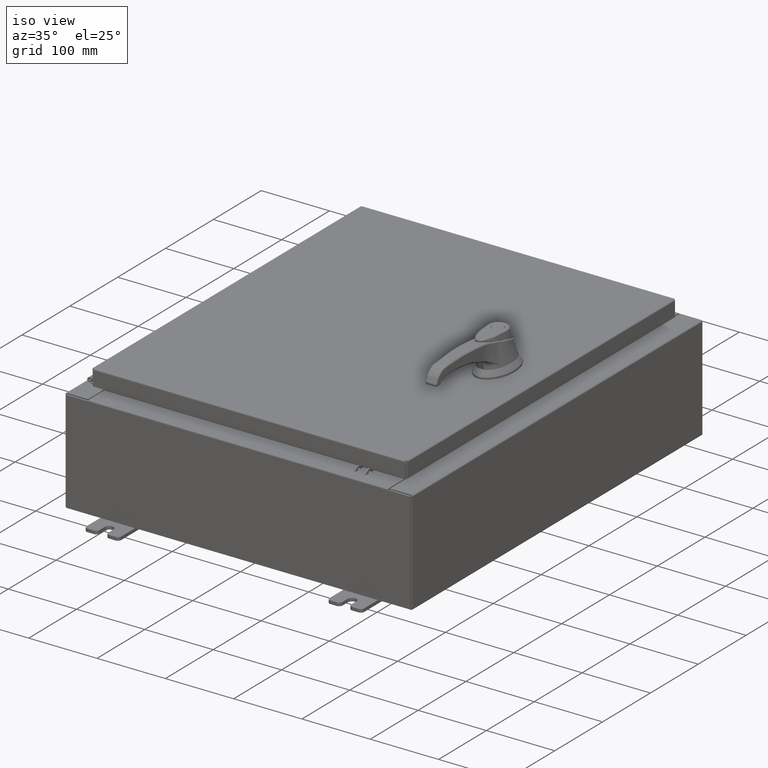
[diagram: clean part render]
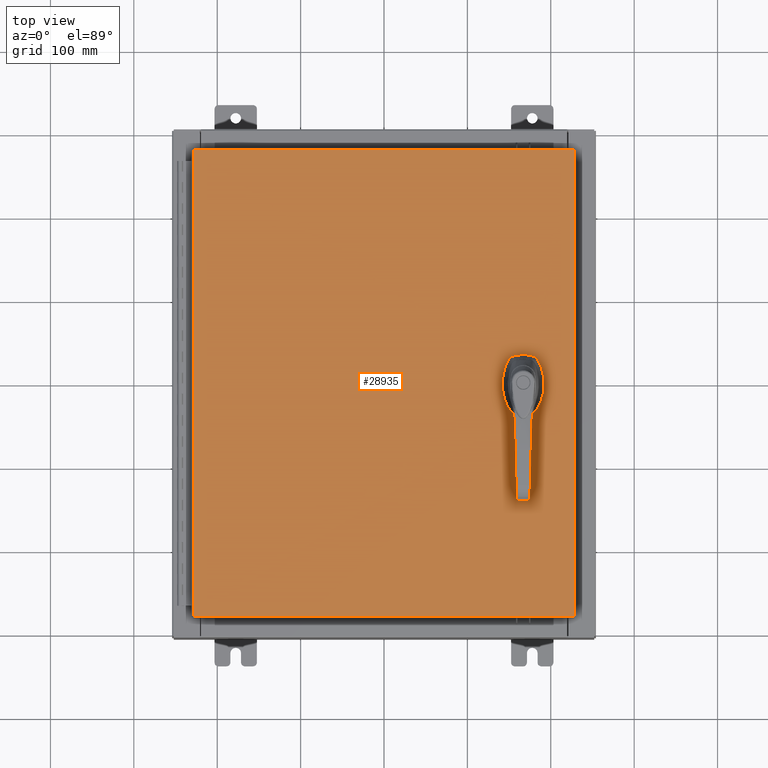
[diagram: tour spotlight — one face highlighted and labeled with its STEP entity id]
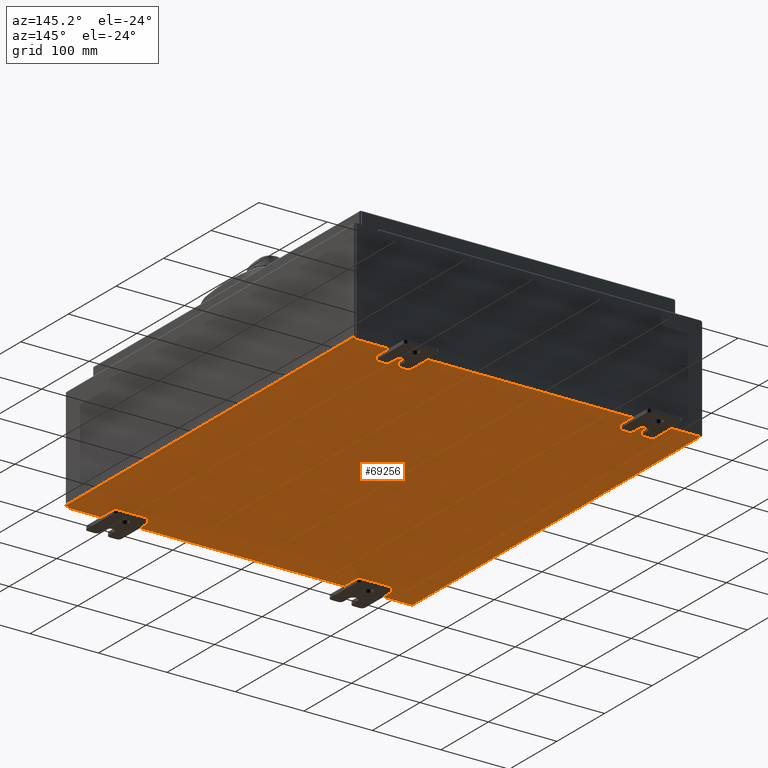
[diagram: tour spotlight — one face highlighted and labeled with its STEP entity id]
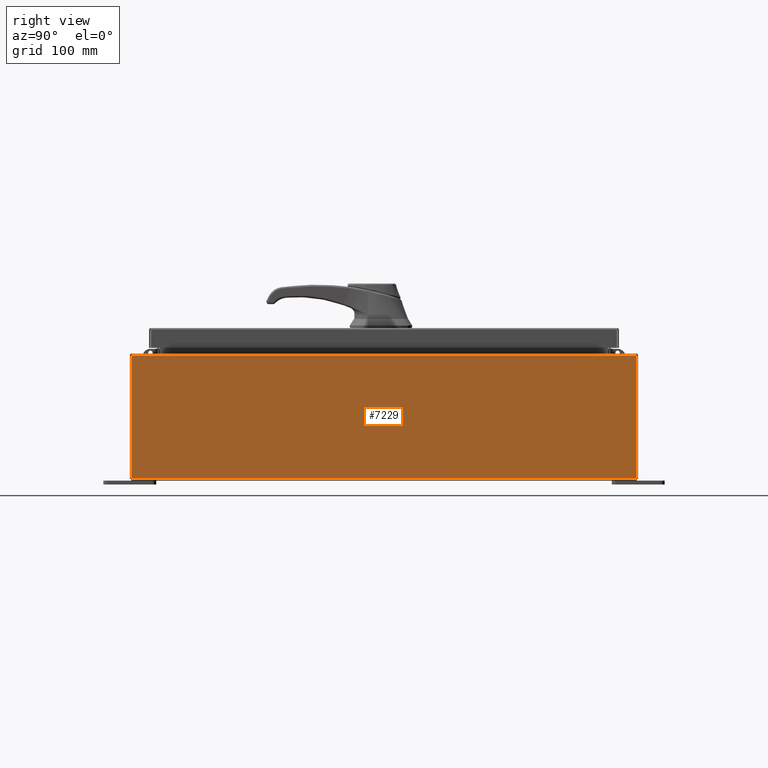
[diagram: tour spotlight — one face highlighted and labeled with its STEP entity id]
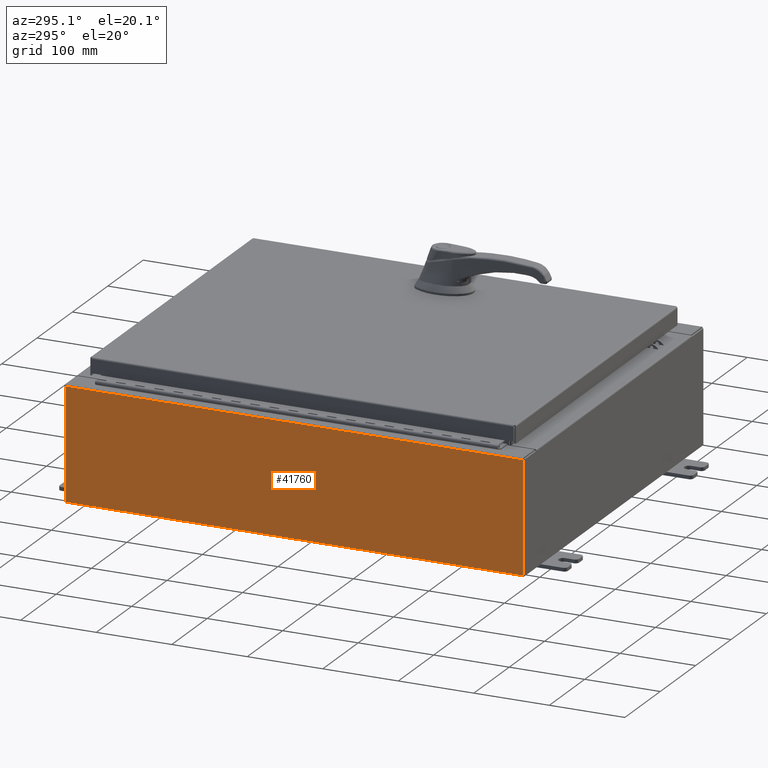
[diagram: tour spotlight — one face highlighted and labeled with its STEP entity id]
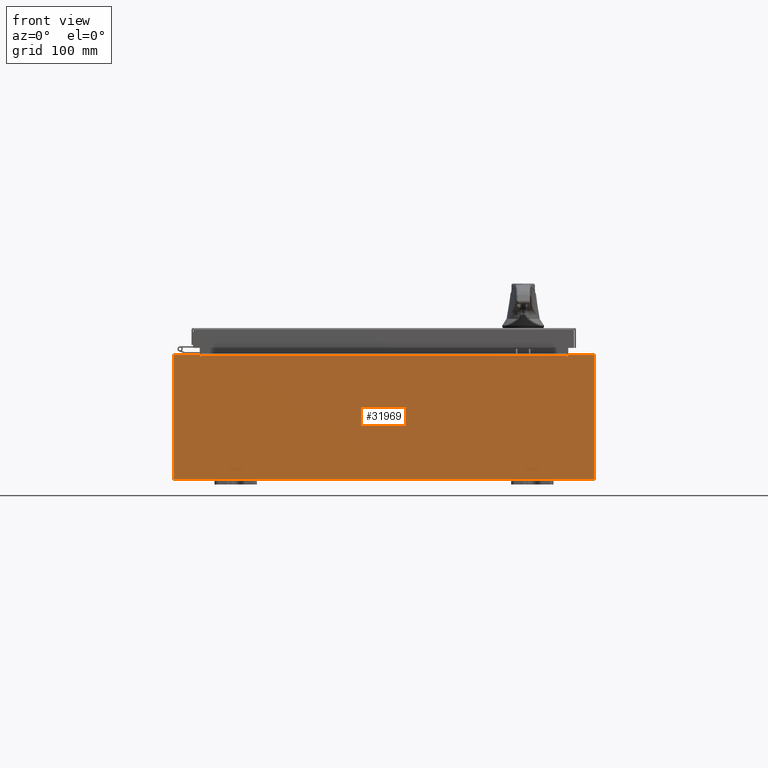
[diagram: tour spotlight — one face highlighted and labeled with its STEP entity id]
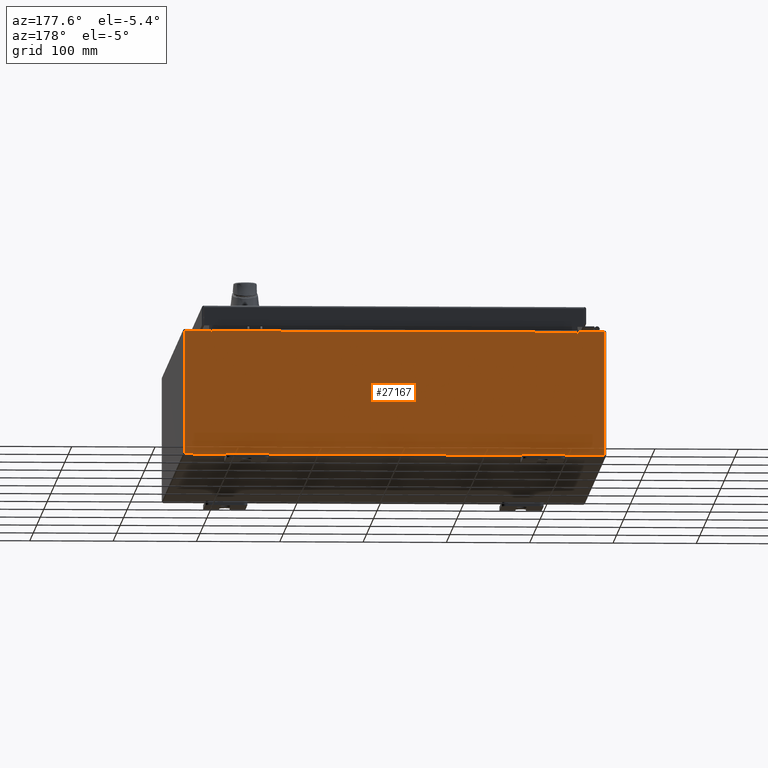
[diagram: tour spotlight — one face highlighted and labeled with its STEP entity id]
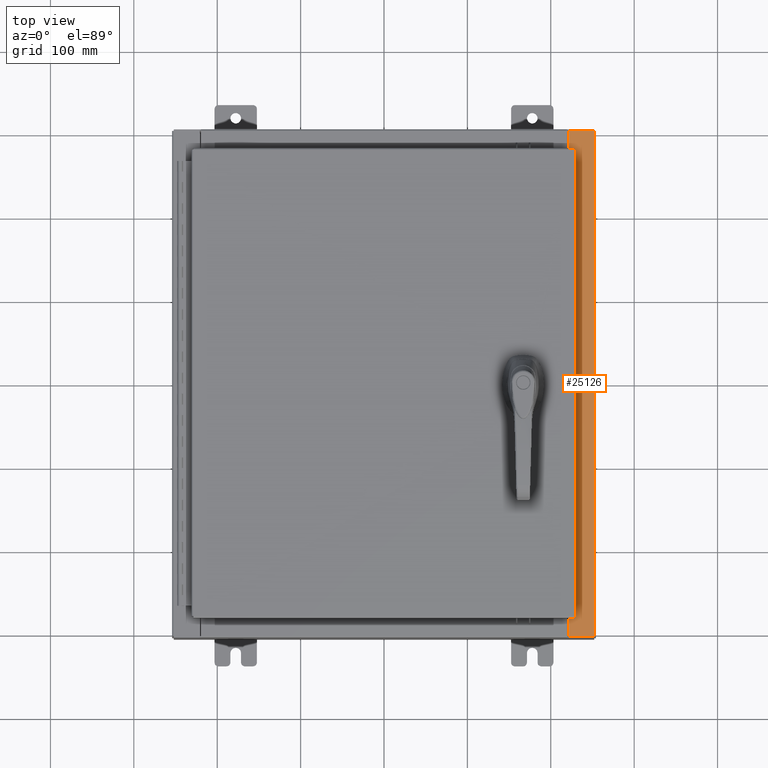
[diagram: tour spotlight — one face highlighted and labeled with its STEP entity id]
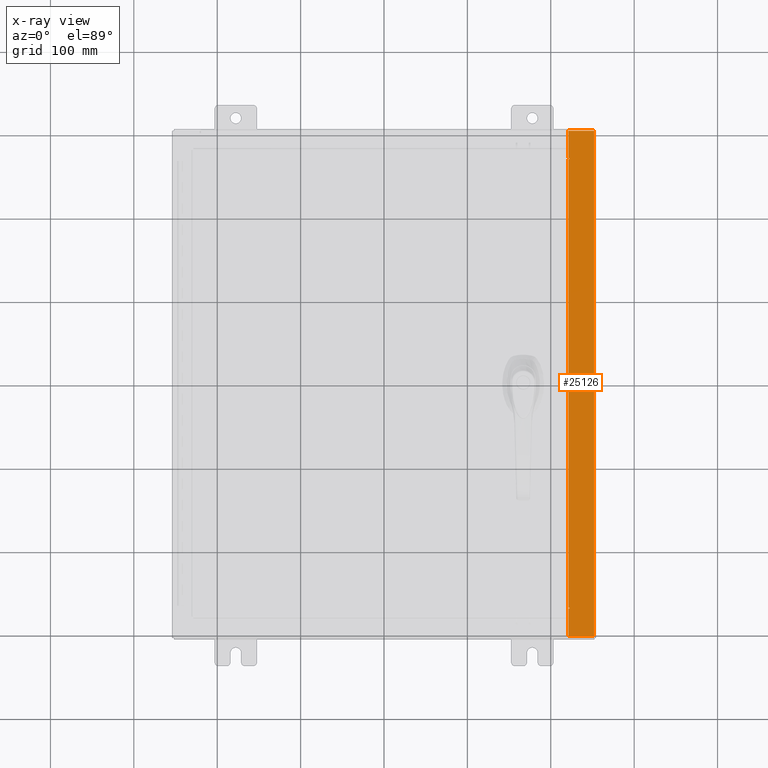
[diagram: x-ray of the same camera — body ghosted, this tour face saturated]
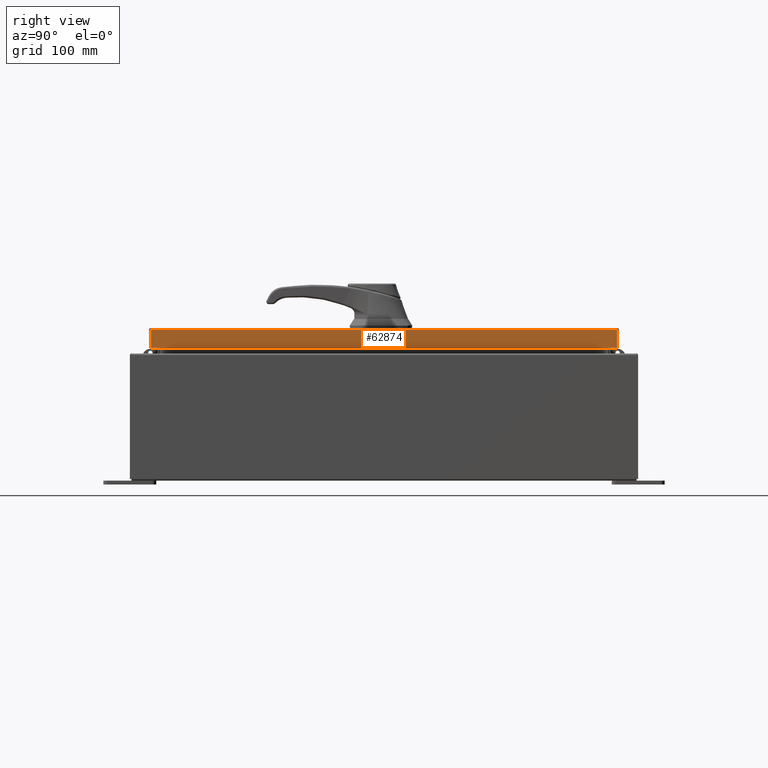
[diagram: tour spotlight — one face highlighted and labeled with its STEP entity id]
A machine part: a face-by-face anatomy tour. The part has 2412 B-rep faces; the first image is the clean iso view, then the 8 largest visible faces are spotlighted one at a time (largest first), each with its STEP entity span.

Face 1 — top view, entity #28935. In plain terms, the highlighted planar face has unit normal (0, 0, -1).
Definition (entity closure, byte-faithful):
#1443 = ORIENTED_EDGE ( 'NONE', *, *, #84385, .T. ) ;
#1839 = VERTEX_POINT ( 'NONE', #104342 ) ;
#1873 = VECTOR ( 'NONE', #65570, 39.37007874015748100 ) ;
#3397 = DIRECTION ( 'NONE',  ( 1.000000000000000000, 0.0000000000000000000, 0.0000000000000000000 ) ) ;
#5227 = ORIENTED_EDGE ( 'NONE', *, *, #60824, .F. ) ;
#5335 = LINE ( 'NONE', #27640, #25663 ) ;
#7788 = LINE ( 'NONE', #101567, #25416 ) ;
#8062 = CARTESIAN_POINT ( 'NONE',  ( 6.749499999999998500, -1.338000000000000100, 0.0000000000000000000 ) ) ;
#8393 = CARTESIAN_POINT ( 'NONE',  ( 6.778227370756308500, -0.4029999999999252000, 0.0000000000000000000 ) ) ;
#9724 = DIRECTION ( 'NONE',  ( -0.0000000000000000000, 0.0000000000000000000, 1.000000000000000000 ) ) ;
#10529 = FACE_BOUND ( 'NONE', #80455, .T. ) ;
#11609 = VERTEX_POINT ( 'NONE', #73767 ) ;
#11759 = CARTESIAN_POINT ( 'NONE',  ( 6.406499999999998500, -1.338000000000000100, 0.0000000000000000000 ) ) ;
#13243 = FACE_BOUND ( 'NONE', #68917, .T. ) ;
#15787 = VERTEX_POINT ( 'NONE', #11759 ) ;
#16213 = VERTEX_POINT ( 'NONE', #112035 ) ;
#17753 = ORIENTED_EDGE ( 'NONE', *, *, #23473, .T. ) ;
#20096 = DIRECTION ( 'NONE',  ( -0.0000000000000000000, 0.0000000000000000000, 1.000000000000000000 ) ) ;
#20970 = VECTOR ( 'NONE', #110856, 39.37007874015748100 ) ;
#21367 = AXIS2_PLACEMENT_3D ( 'NONE', #107209, #55258, #3397 ) ;
#21513 = VERTEX_POINT ( 'NONE', #78891 ) ;
#22700 = AXIS2_PLACEMENT_3D ( 'NONE', #78635, #26778, #87376 ) ;
#22728 = CARTESIAN_POINT ( 'NONE',  ( 6.980999999999924400, 0.0000000000000000000, 0.0000000000000000000 ) ) ;
#23142 = CIRCLE ( 'NONE', #55793, 0.1715000000000000700 ) ;
#23473 = EDGE_CURVE ( 'NONE', #11609, #83363, #63881, .T. ) ;
#23921 = EDGE_CURVE ( 'NONE', #21513, #100274, #42101, .T. ) ;
#25416 = VECTOR ( 'NONE', #83688, 39.37007874015748100 ) ;
#25663 = VECTOR ( 'NONE', #36395, 39.37007874015748100 ) ;
#26535 = CARTESIAN_POINT ( 'NONE',  ( -8.990300000000001300, -11.00630000000000100, 8.878505979408856000E-016 ) ) ;
#26778 = DIRECTION ( 'NONE',  ( -0.0000000000000000000, 0.0000000000000000000, 1.000000000000000000 ) ) ;
#27640 = CARTESIAN_POINT ( 'NONE',  ( 6.175000000000072700, 0.0000000000000000000, 0.0000000000000000000 ) ) ;
#28935 = ADVANCED_FACE ( 'NONE', ( #10529, #79624, #13243 ), #100367, .F. ) ;
#30779 = VERTEX_POINT ( 'NONE', #109730 ) ;
#32503 = AXIS2_PLACEMENT_3D ( 'NONE', #93247, #41358, #102006 ) ;
#32645 = EDGE_CURVE ( 'NONE', #98771, #11609, #110397, .T. ) ;
#32838 = VERTEX_POINT ( 'NONE', #60498 ) ;
#33430 = CARTESIAN_POINT ( 'NONE',  ( 8.990299999999999500, 11.00630000000000000, -2.048885995248197400E-016 ) ) ;
#36046 = CIRCLE ( 'NONE', #39004, 0.4499999999999156900 ) ;
#36395 = DIRECTION ( 'NONE',  ( 0.0000000000000000000, -1.000000000000000000, 0.0000000000000000000 ) ) ;
#37858 = EDGE_CURVE ( 'NONE', #44173, #15787, #23142, .T. ) ;
#38161 = VECTOR ( 'NONE', #94056, 39.37007874015748100 ) ;
#39004 = AXIS2_PLACEMENT_3D ( 'NONE', #71975, #20096, #80665 ) ;
#39993 = VECTOR ( 'NONE', #69706, 39.37007874015748100 ) ;
#40191 = DIRECTION ( 'NONE',  ( 0.0000000000000000000, -1.000000000000000000, 0.0000000000000000000 ) ) ;
#41358 = DIRECTION ( 'NONE',  ( -0.0000000000000000000, 0.0000000000000000000, 1.000000000000000000 ) ) ;
#41656 = DIRECTION ( 'NONE',  ( -0.0000000000000000000, 0.0000000000000000000, 1.000000000000000000 ) ) ;
#42101 = LINE ( 'NONE', #92831, #108535 ) ;
#44173 = VERTEX_POINT ( 'NONE', #8062 ) ;
#48420 = DIRECTION ( 'NONE',  ( 0.0000000000000000000, 0.0000000000000000000, -1.000000000000000000 ) ) ;
#48778 = CARTESIAN_POINT ( 'NONE',  ( -8.990299999999999500, 11.00630000000000100, -2.048885995248197400E-016 ) ) ;
#50258 = CARTESIAN_POINT ( 'NONE',  ( 8.990299999999997700, -11.00630000000000000, -2.219626494852214000E-016 ) ) ;
#51527 = ORIENTED_EDGE ( 'NONE', *, *, #32645, .T. ) ;
#51858 = ORIENTED_EDGE ( 'NONE', *, *, #84839, .F. ) ;
#54865 = CIRCLE ( 'NONE', #21367, 0.4499999999999156900 ) ;
#55258 = DIRECTION ( 'NONE',  ( -0.0000000000000000000, 0.0000000000000000000, 1.000000000000000000 ) ) ;
#55793 = AXIS2_PLACEMENT_3D ( 'NONE', #61636, #9724, #70305 ) ;
#57339 = EDGE_CURVE ( 'NONE', #15787, #44173, #84696, .T. ) ;
#57630 = EDGE_CURVE ( 'NONE', #30779, #98771, #65709, .T. ) ;
#57811 = EDGE_CURVE ( 'NONE', #100274, #68904, #54865, .T. ) ;
#60498 = CARTESIAN_POINT ( 'NONE',  ( 6.175000000000072700, 0.2002273707563079800, 0.0000000000000000000 ) ) ;
#60504 = CARTESIAN_POINT ( 'NONE',  ( 6.980999999999924400, 0.2002273707563080300, 0.0000000000000000000 ) ) ;
#60824 = EDGE_CURVE ( 'NONE', #66670, #16213, #70970, .T. ) ;
#61636 = CARTESIAN_POINT ( 'NONE',  ( 6.577999999999998500, -1.338000000000000100, 0.0000000000000000000 ) ) ;
#63881 = LINE ( 'NONE', #33430, #38161 ) ;
#65570 = DIRECTION ( 'NONE',  ( -1.000000000000000000, 0.0000000000000000000, 0.0000000000000000000 ) ) ;
#65709 = LINE ( 'NONE', #26535, #39993 ) ;
#66670 = VERTEX_POINT ( 'NONE', #75073 ) ;
#67082 = ORIENTED_EDGE ( 'NONE', *, *, #76386, .F. ) ;
#67131 = ORIENTED_EDGE ( 'NONE', *, *, #92495, .F. ) ;
#67689 = VECTOR ( 'NONE', #40191, 39.37007874015748100 ) ;
#67776 = CARTESIAN_POINT ( 'NONE',  ( 6.980999999999924400, -0.2002273707563079800, 0.0000000000000000000 ) ) ;
#68196 = CARTESIAN_POINT ( 'NONE',  ( 8.990299999999997700, -11.00630000000000000, -2.219626494852214000E-016 ) ) ;
#68904 = VERTEX_POINT ( 'NONE', #67776 ) ;
#68917 = EDGE_LOOP ( 'NONE', ( #1443, #94692, #77320, #67131, #51858, #95144, #5227, #67082 ) ) ;
#69706 = DIRECTION ( 'NONE',  ( 1.000000000000000000, -0.0000000000000000000, -0.0000000000000000000 ) ) ;
#69943 = EDGE_CURVE ( 'NONE', #16213, #32838, #74011, .T. ) ;
#70305 = DIRECTION ( 'NONE',  ( 1.000000000000000000, 0.0000000000000000000, 0.0000000000000000000 ) ) ;
#70449 = LINE ( 'NONE', #22728, #67689 ) ;
#70970 = LINE ( 'NONE', #92105, #1873 ) ;
#71975 = CARTESIAN_POINT ( 'NONE',  ( 6.577999999999998500, 0.0000000000000000000, 0.0000000000000000000 ) ) ;
#73767 = CARTESIAN_POINT ( 'NONE',  ( 8.990299999999999500, 11.00630000000000000, -2.048885995248197400E-016 ) ) ;
#74011 = CIRCLE ( 'NONE', #22700, 0.4499999999999156900 ) ;
#75073 = CARTESIAN_POINT ( 'NONE',  ( 6.778227370756308500, 0.4029999999999252000, 0.0000000000000000000 ) ) ;
#76386 = EDGE_CURVE ( 'NONE', #111287, #66670, #36046, .T. ) ;
#77320 = ORIENTED_EDGE ( 'NONE', *, *, #23921, .F. ) ;
#78635 = CARTESIAN_POINT ( 'NONE',  ( 6.577999999999998500, 0.0000000000000000000, 0.0000000000000000000 ) ) ;
#78891 = CARTESIAN_POINT ( 'NONE',  ( 6.377772629243688500, -0.4029999999999252000, 0.0000000000000000000 ) ) ;
#79624 = FACE_OUTER_BOUND ( 'NONE', #83459, .T. ) ;
#79748 = CIRCLE ( 'NONE', #32503, 0.4499999999999156900 ) ;
#80455 = EDGE_LOOP ( 'NONE', ( #101018, #93510 ) ) ;
#80665 = DIRECTION ( 'NONE',  ( 1.000000000000000000, 0.0000000000000000000, 0.0000000000000000000 ) ) ;
#83363 = VERTEX_POINT ( 'NONE', #48778 ) ;
#83459 = EDGE_LOOP ( 'NONE', ( #83820, #51527, #17753, #98874 ) ) ;
#83688 = DIRECTION ( 'NONE',  ( 0.0000000000000000000, -1.000000000000000000, 0.0000000000000000000 ) ) ;
#83820 = ORIENTED_EDGE ( 'NONE', *, *, #57630, .T. ) ;
#84385 = EDGE_CURVE ( 'NONE', #111287, #68904, #70449, .T. ) ;
#84696 = CIRCLE ( 'NONE', #101226, 0.1715000000000000700 ) ;
#84839 = EDGE_CURVE ( 'NONE', #32838, #1839, #5335, .T. ) ;
#87346 = AXIS2_PLACEMENT_3D ( 'NONE', #99632, #48420, #109049 ) ;
#87376 = DIRECTION ( 'NONE',  ( 1.000000000000000000, 0.0000000000000000000, 0.0000000000000000000 ) ) ;
#92105 = CARTESIAN_POINT ( 'NONE',  ( 0.0000000000000000000, 0.4029999999999252000, 0.0000000000000000000 ) ) ;
#92495 = EDGE_CURVE ( 'NONE', #1839, #21513, #79748, .T. ) ;
#92831 = CARTESIAN_POINT ( 'NONE',  ( 0.0000000000000000000, -0.4029999999999252000, 0.0000000000000000000 ) ) ;
#93247 = CARTESIAN_POINT ( 'NONE',  ( 6.577999999999998500, 0.0000000000000000000, 0.0000000000000000000 ) ) ;
#93510 = ORIENTED_EDGE ( 'NONE', *, *, #57339, .F. ) ;
#93567 = EDGE_CURVE ( 'NONE', #83363, #30779, #7788, .T. ) ;
#93584 = CARTESIAN_POINT ( 'NONE',  ( 6.577999999999998500, -1.338000000000000100, 0.0000000000000000000 ) ) ;
#94056 = DIRECTION ( 'NONE',  ( -1.000000000000000000, -0.0000000000000000000, -0.0000000000000000000 ) ) ;
#94692 = ORIENTED_EDGE ( 'NONE', *, *, #57811, .F. ) ;
#95144 = ORIENTED_EDGE ( 'NONE', *, *, #69943, .F. ) ;
#98771 = VERTEX_POINT ( 'NONE', #68196 ) ;
#98874 = ORIENTED_EDGE ( 'NONE', *, *, #93567, .T. ) ;
#99632 = CARTESIAN_POINT ( 'NONE',  ( 0.0000000000000000000, 0.0000000000000000000, 0.0000000000000000000 ) ) ;
#100274 = VERTEX_POINT ( 'NONE', #8393 ) ;
#100367 = PLANE ( 'NONE',  #87346 ) ;
#101018 = ORIENTED_EDGE ( 'NONE', *, *, #37858, .F. ) ;
#101226 = AXIS2_PLACEMENT_3D ( 'NONE', #93584, #41656, #102315 ) ;
#101567 = CARTESIAN_POINT ( 'NONE',  ( -8.990299999999999500, 11.00630000000000100, -2.048885995248197400E-016 ) ) ;
#102006 = DIRECTION ( 'NONE',  ( 1.000000000000000000, 0.0000000000000000000, 0.0000000000000000000 ) ) ;
#102315 = DIRECTION ( 'NONE',  ( 1.000000000000000000, 0.0000000000000000000, 0.0000000000000000000 ) ) ;
#104342 = CARTESIAN_POINT ( 'NONE',  ( 6.175000000000072700, -0.2002273707563079800, 0.0000000000000000000 ) ) ;
#107209 = CARTESIAN_POINT ( 'NONE',  ( 6.577999999999998500, 0.0000000000000000000, 0.0000000000000000000 ) ) ;
#108535 = VECTOR ( 'NONE', #110604, 39.37007874015748100 ) ;
#109049 = DIRECTION ( 'NONE',  ( -1.000000000000000000, 0.0000000000000000000, -0.0000000000000000000 ) ) ;
#109730 = CARTESIAN_POINT ( 'NONE',  ( -8.990300000000001300, -11.00630000000000100, 8.878505979408856000E-016 ) ) ;
#110397 = LINE ( 'NONE', #50258, #20970 ) ;
#110604 = DIRECTION ( 'NONE',  ( 1.000000000000000000, 0.0000000000000000000, 0.0000000000000000000 ) ) ;
#110856 = DIRECTION ( 'NONE',  ( 0.0000000000000000000, 1.000000000000000000, 0.0000000000000000000 ) ) ;
#111287 = VERTEX_POINT ( 'NONE', #60504 ) ;
#112035 = CARTESIAN_POINT ( 'NONE',  ( 6.377772629243688500, 0.4029999999999252000, 0.0000000000000000000 ) ) ;

Face 2 — auxiliary view, entity #69256. In plain terms, the highlighted planar face has unit normal (0, 0, -1).
Definition (entity closure, byte-faithful):
#197 = CARTESIAN_POINT ( 'NONE',  ( 9.912300000000000100, 11.92530000000000000, -0.07469999999999994700 ) ) ;
#2574 = LINE ( 'NONE', #46544, #45922 ) ;
#4100 = VECTOR ( 'NONE', #95217, 39.37007874015748100 ) ;
#4113 = PLANE ( 'NONE',  #30696 ) ;
#9558 = VERTEX_POINT ( 'NONE', #108407 ) ;
#12838 = DIRECTION ( 'NONE',  ( 0.0000000000000000000, 0.0000000000000000000, -1.000000000000000000 ) ) ;
#14490 = FACE_OUTER_BOUND ( 'NONE', #102533, .T. ) ;
#14756 = EDGE_CURVE ( 'NONE', #104440, #34902, #91787, .T. ) ;
#17038 = VERTEX_POINT ( 'NONE', #86117 ) ;
#20612 = ORIENTED_EDGE ( 'NONE', *, *, #26004, .T. ) ;
#21159 = CARTESIAN_POINT ( 'NONE',  ( 0.0000000000000000000, 0.0000000000000000000, -0.07470000000000000300 ) ) ;
#26004 = EDGE_CURVE ( 'NONE', #17038, #9558, #50143, .T. ) ;
#30371 = LINE ( 'NONE', #68450, #102242 ) ;
#30696 = AXIS2_PLACEMENT_3D ( 'NONE', #21159, #12838, #73398 ) ;
#34902 = VERTEX_POINT ( 'NONE', #66992 ) ;
#45922 = VECTOR ( 'NONE', #107535, 39.37007874015748100 ) ;
#46544 = CARTESIAN_POINT ( 'NONE',  ( -10.00000000000000000, -11.92530000000000000, -0.07470000000000000300 ) ) ;
#50143 = LINE ( 'NONE', #51951, #4100 ) ;
#51951 = CARTESIAN_POINT ( 'NONE',  ( -9.912300000000000100, -11.92530000000000000, -0.07469999999999994700 ) ) ;
#59748 = DIRECTION ( 'NONE',  ( -1.000000000000000000, -0.0000000000000000000, -0.0000000000000000000 ) ) ;
#60769 = DIRECTION ( 'NONE',  ( -0.0000000000000000000, -1.000000000000000000, -0.0000000000000000000 ) ) ;
#61694 = ORIENTED_EDGE ( 'NONE', *, *, #110462, .F. ) ;
#63806 = ORIENTED_EDGE ( 'NONE', *, *, #72403, .F. ) ;
#66992 = CARTESIAN_POINT ( 'NONE',  ( 9.912300000000000100, -11.92530000000000000, -0.07470000000000000300 ) ) ;
#68450 = CARTESIAN_POINT ( 'NONE',  ( -10.00000000000000000, 11.92530000000000000, -0.07470000000000000300 ) ) ;
#69256 = ADVANCED_FACE ( 'NONE', ( #14490 ), #4113, .T. ) ;
#70238 = CARTESIAN_POINT ( 'NONE',  ( 9.912300000000000100, 11.92529999999999800, -0.07469999999999994700 ) ) ;
#72403 = EDGE_CURVE ( 'NONE', #104440, #9558, #30371, .T. ) ;
#73398 = DIRECTION ( 'NONE',  ( -1.000000000000000000, 0.0000000000000000000, -0.0000000000000000000 ) ) ;
#86117 = CARTESIAN_POINT ( 'NONE',  ( -9.912300000000000100, -11.92529999999999800, -0.07469999999999994700 ) ) ;
#91787 = LINE ( 'NONE', #197, #94547 ) ;
#94547 = VECTOR ( 'NONE', #60769, 39.37007874015748100 ) ;
#95217 = DIRECTION ( 'NONE',  ( -0.0000000000000000000, 1.000000000000000000, -0.0000000000000000000 ) ) ;
#102242 = VECTOR ( 'NONE', #59748, 39.37007874015748100 ) ;
#102533 = EDGE_LOOP ( 'NONE', ( #61694, #20612, #63806, #106808 ) ) ;
#104440 = VERTEX_POINT ( 'NONE', #70238 ) ;
#106808 = ORIENTED_EDGE ( 'NONE', *, *, #14756, .T. ) ;
#107535 = DIRECTION ( 'NONE',  ( 1.000000000000000000, 0.0000000000000000000, 0.0000000000000000000 ) ) ;
#108407 = CARTESIAN_POINT ( 'NONE',  ( -9.912300000000000100, 11.92530000000000000, -0.07470000000000000300 ) ) ;
#110462 = EDGE_CURVE ( 'NONE', #17038, #34902, #2574, .T. ) ;

Face 3 — right view, entity #7229. In plain terms, the highlighted planar face has unit normal (-1, 0, 0).
Definition (entity closure, byte-faithful):
#1213 = VECTOR ( 'NONE', #26693, 39.37007874015748100 ) ;
#2076 = DIRECTION ( 'NONE',  ( -1.000000000000000000, 0.0000000000000000000, 3.319545939341922000E-015 ) ) ;
#7050 = FACE_OUTER_BOUND ( 'NONE', #71593, .T. ) ;
#7229 = ADVANCED_FACE ( 'NONE', ( #7050 ), #45237, .F. ) ;
#10187 = CARTESIAN_POINT ( 'NONE',  ( 10.00000000000002000, -11.92530000000000000, 5.837600000000001000 ) ) ;
#15302 = CARTESIAN_POINT ( 'NONE',  ( 10.00000000000002000, 11.92530000000000000, 5.837600000000001000 ) ) ;
#20888 = LINE ( 'NONE', #47544, #84519 ) ;
#26693 = DIRECTION ( 'NONE',  ( -0.0000000000000000000, -1.000000000000000000, -0.0000000000000000000 ) ) ;
#34959 = ORIENTED_EDGE ( 'NONE', *, *, #59299, .T. ) ;
#45237 = PLANE ( 'NONE',  #51222 ) ;
#46594 = DIRECTION ( 'NONE',  ( -3.319545939341922800E-015, 0.0000000000000000000, -1.000000000000000000 ) ) ;
#46757 = ORIENTED_EDGE ( 'NONE', *, *, #92229, .F. ) ;
#47544 = CARTESIAN_POINT ( 'NONE',  ( 10.00000000000000000, 11.92530000000000000, -3.345627304943080600E-014 ) ) ;
#49193 = EDGE_CURVE ( 'NONE', #95367, #95572, #102051, .T. ) ;
#51222 = AXIS2_PLACEMENT_3D ( 'NONE', #105883, #2076, #62683 ) ;
#56234 = DIRECTION ( 'NONE',  ( 3.319545939341922800E-015, 0.0000000000000000000, 1.000000000000000000 ) ) ;
#59299 = EDGE_CURVE ( 'NONE', #95572, #75878, #103747, .T. ) ;
#62683 = DIRECTION ( 'NONE',  ( 3.319545939341922000E-015, 0.0000000000000000000, 1.000000000000000000 ) ) ;
#63656 = CARTESIAN_POINT ( 'NONE',  ( 10.00000000000000000, -11.92530000000000000, -3.345627304943080600E-014 ) ) ;
#66984 = CARTESIAN_POINT ( 'NONE',  ( 10.00000000000002000, 11.92529999999999800, 5.837600000000001000 ) ) ;
#71593 = EDGE_LOOP ( 'NONE', ( #107406, #34959, #46757, #108408 ) ) ;
#75839 = DIRECTION ( 'NONE',  ( -0.0000000000000000000, -1.000000000000000000, -0.0000000000000000000 ) ) ;
#75878 = VERTEX_POINT ( 'NONE', #95684 ) ;
#77889 = VECTOR ( 'NONE', #46594, 39.37007874015748100 ) ;
#78954 = VECTOR ( 'NONE', #75839, 39.37007874015748100 ) ;
#84519 = VECTOR ( 'NONE', #56234, 39.37007874015748100 ) ;
#87291 = CARTESIAN_POINT ( 'NONE',  ( 10.00000000000000000, -11.92530000000000000, 0.01299999999999986400 ) ) ;
#92229 = EDGE_CURVE ( 'NONE', #100453, #75878, #93351, .T. ) ;
#93351 = LINE ( 'NONE', #87291, #1213 ) ;
#95367 = VERTEX_POINT ( 'NONE', #66984 ) ;
#95572 = VERTEX_POINT ( 'NONE', #10187 ) ;
#95684 = CARTESIAN_POINT ( 'NONE',  ( 10.00000000000000000, -11.92530000000000000, 0.01299999999999985900 ) ) ;
#96698 = CARTESIAN_POINT ( 'NONE',  ( 10.00000000000000000, 11.92529999999999800, 0.01299999999999986400 ) ) ;
#100453 = VERTEX_POINT ( 'NONE', #96698 ) ;
#102051 = LINE ( 'NONE', #15302, #78954 ) ;
#103057 = EDGE_CURVE ( 'NONE', #100453, #95367, #20888, .T. ) ;
#103747 = LINE ( 'NONE', #63656, #77889 ) ;
#105883 = CARTESIAN_POINT ( 'NONE',  ( 10.00000000000000000, 0.0000000000000000000, -3.345627304943080600E-014 ) ) ;
#107406 = ORIENTED_EDGE ( 'NONE', *, *, #49193, .T. ) ;
#108408 = ORIENTED_EDGE ( 'NONE', *, *, #103057, .T. ) ;

Face 4 — auxiliary view, entity #41760. In plain terms, the highlighted planar face has unit normal (1, 0, 0).
Definition (entity closure, byte-faithful):
#646 = EDGE_LOOP ( 'NONE', ( #13410, #49806, #21737, #32468 ) ) ;
#3940 = VERTEX_POINT ( 'NONE', #105071 ) ;
#4504 = DIRECTION ( 'NONE',  ( 3.319545939341922800E-015, 0.0000000000000000000, -1.000000000000000000 ) ) ;
#5099 = LINE ( 'NONE', #23468, #71519 ) ;
#8243 = DIRECTION ( 'NONE',  ( 3.319545939341922800E-015, 0.0000000000000000000, -1.000000000000000000 ) ) ;
#10623 = CARTESIAN_POINT ( 'NONE',  ( -10.00000000000002300, -11.92529999999999600, 5.837599999999999200 ) ) ;
#11641 = EDGE_CURVE ( 'NONE', #23258, #110814, #73181, .T. ) ;
#13410 = ORIENTED_EDGE ( 'NONE', *, *, #72136, .T. ) ;
#20917 = LINE ( 'NONE', #56016, #92753 ) ;
#21737 = ORIENTED_EDGE ( 'NONE', *, *, #93553, .F. ) ;
#23258 = VERTEX_POINT ( 'NONE', #57273 ) ;
#23468 = CARTESIAN_POINT ( 'NONE',  ( -10.00000000000000000, 11.92530000000000000, 0.01299999999999986400 ) ) ;
#25272 = CARTESIAN_POINT ( 'NONE',  ( -10.00000000000000000, 0.0000000000000000000, -3.345627304943080600E-014 ) ) ;
#29516 = FACE_OUTER_BOUND ( 'NONE', #646, .T. ) ;
#31639 = LINE ( 'NONE', #65072, #74961 ) ;
#32468 = ORIENTED_EDGE ( 'NONE', *, *, #11641, .T. ) ;
#40089 = CARTESIAN_POINT ( 'NONE',  ( -10.00000000000000000, -11.92530000000000000, -3.345627304943080600E-014 ) ) ;
#40562 = DIRECTION ( 'NONE',  ( -0.0000000000000000000, 1.000000000000000000, -0.0000000000000000000 ) ) ;
#41760 = ADVANCED_FACE ( 'NONE', ( #29516 ), #112016, .F. ) ;
#49806 = ORIENTED_EDGE ( 'NONE', *, *, #61214, .T. ) ;
#56016 = CARTESIAN_POINT ( 'NONE',  ( -10.00000000000002300, -11.92530000000000000, 5.837599999999999200 ) ) ;
#57273 = CARTESIAN_POINT ( 'NONE',  ( -10.00000000000000000, -11.92529999999999800, 0.01299999999999986400 ) ) ;
#60129 = DIRECTION ( 'NONE',  ( 1.000000000000000000, 0.0000000000000000000, 3.319545939341922800E-015 ) ) ;
#61214 = EDGE_CURVE ( 'NONE', #3940, #109477, #31639, .T. ) ;
#64743 = DIRECTION ( 'NONE',  ( 0.0000000000000000000, 1.000000000000000000, 0.0000000000000000000 ) ) ;
#65072 = CARTESIAN_POINT ( 'NONE',  ( -10.00000000000000000, 11.92530000000000000, -3.345627304943080600E-014 ) ) ;
#68261 = CARTESIAN_POINT ( 'NONE',  ( -10.00000000000000000, 11.92530000000000000, 0.01299999999999985900 ) ) ;
#71519 = VECTOR ( 'NONE', #40562, 39.37007874015748100 ) ;
#72136 = EDGE_CURVE ( 'NONE', #110814, #3940, #20917, .T. ) ;
#73181 = LINE ( 'NONE', #40089, #111093 ) ;
#74961 = VECTOR ( 'NONE', #4504, 39.37007874015748100 ) ;
#90820 = AXIS2_PLACEMENT_3D ( 'NONE', #25272, #60129, #8243 ) ;
#92753 = VECTOR ( 'NONE', #64743, 39.37007874015748100 ) ;
#93553 = EDGE_CURVE ( 'NONE', #23258, #109477, #5099, .T. ) ;
#100709 = DIRECTION ( 'NONE',  ( -3.319545939341922800E-015, 0.0000000000000000000, 1.000000000000000000 ) ) ;
#105071 = CARTESIAN_POINT ( 'NONE',  ( -10.00000000000002000, 11.92530000000000000, 5.837599999999999200 ) ) ;
#109477 = VERTEX_POINT ( 'NONE', #68261 ) ;
#110814 = VERTEX_POINT ( 'NONE', #10623 ) ;
#111093 = VECTOR ( 'NONE', #100709, 39.37007874015748100 ) ;
#112016 = PLANE ( 'NONE',  #90820 ) ;

Face 5 — front view, entity #31969. In plain terms, the highlighted planar face has unit normal (-0, 1, -0).
Definition (entity closure, byte-faithful):
#3031 = LINE ( 'NONE', #96860, #92450 ) ;
#3531 = CARTESIAN_POINT ( 'NONE',  ( -9.925300000000000000, 0.0000000000000000000, 2.925300000000000500 ) ) ;
#7099 = DIRECTION ( 'NONE',  ( 0.0000000000000000000, 0.0000000000000000000, -1.000000000000000000 ) ) ;
#7395 = ORIENTED_EDGE ( 'NONE', *, *, #25084, .F. ) ;
#7512 = AXIS2_PLACEMENT_3D ( 'NONE', #77728, #25884, #86462 ) ;
#8367 = PLANE ( 'NONE',  #72258 ) ;
#9787 = LINE ( 'NONE', #20320, #30116 ) ;
#10870 = VERTEX_POINT ( 'NONE', #91846 ) ;
#14240 = EDGE_CURVE ( 'NONE', #48374, #19410, #98696, .T. ) ;
#17444 = VECTOR ( 'NONE', #96352, 39.37007874015748100 ) ;
#19410 = VERTEX_POINT ( 'NONE', #110155 ) ;
#20239 = VERTEX_POINT ( 'NONE', #55365 ) ;
#20320 = CARTESIAN_POINT ( 'NONE',  ( -9.925300000000000000, 0.0000000000000000000, 2.925300000000000500 ) ) ;
#20884 = VECTOR ( 'NONE', #109671, 39.37007874015748100 ) ;
#25084 = EDGE_CURVE ( 'NONE', #108506, #40820, #71789, .T. ) ;
#25777 = CARTESIAN_POINT ( 'NONE',  ( 0.0000000000000000000, 0.0000000000000000000, 0.0000000000000000000 ) ) ;
#25884 = DIRECTION ( 'NONE',  ( -0.0000000000000000000, 1.000000000000000000, -0.0000000000000000000 ) ) ;
#26484 = VERTEX_POINT ( 'NONE', #77933 ) ;
#26824 = LINE ( 'NONE', #3531, #52573 ) ;
#26967 = CARTESIAN_POINT ( 'NONE',  ( 8.637200000000000000, 0.0000000000000000000, 0.0000000000000000000 ) ) ;
#29513 = EDGE_CURVE ( 'NONE', #40781, #10870, #101292, .T. ) ;
#30116 = VECTOR ( 'NONE', #98017, 39.37007874015748100 ) ;
#30613 = EDGE_CURVE ( 'NONE', #40820, #98142, #95805, .T. ) ;
#31263 = CARTESIAN_POINT ( 'NONE',  ( 8.674550000000001800, 0.0000000000000000000, 2.925300000000000500 ) ) ;
#31969 = ADVANCED_FACE ( 'NONE', ( #56248 ), #8367, .F. ) ;
#32173 = CARTESIAN_POINT ( 'NONE',  ( 9.925300000000000000, 0.0000000000000000000, -2.925299999999999600 ) ) ;
#33393 = CARTESIAN_POINT ( 'NONE',  ( 8.674550000000000000, 0.0000000000000000000, 2.874950000000000600 ) ) ;
#34558 = DIRECTION ( 'NONE',  ( 0.0000000000000000000, -0.0000000000000000000, -1.000000000000000000 ) ) ;
#35703 = EDGE_CURVE ( 'NONE', #64319, #20239, #9787, .T. ) ;
#38413 = ORIENTED_EDGE ( 'NONE', *, *, #53363, .T. ) ;
#38702 = ORIENTED_EDGE ( 'NONE', *, *, #112437, .T. ) ;
#38798 = ORIENTED_EDGE ( 'NONE', *, *, #49693, .T. ) ;
#40781 = VERTEX_POINT ( 'NONE', #33393 ) ;
#40820 = VERTEX_POINT ( 'NONE', #94400 ) ;
#41058 = VECTOR ( 'NONE', #77968, 39.37007874015748100 ) ;
#42144 = ORIENTED_EDGE ( 'NONE', *, *, #35703, .T. ) ;
#46030 = VERTEX_POINT ( 'NONE', #31263 ) ;
#46708 = DIRECTION ( 'NONE',  ( -0.0000000000000000000, -0.0000000000000000000, 1.000000000000000000 ) ) ;
#47357 = CARTESIAN_POINT ( 'NONE',  ( -8.637199999999996400, -0.0000000000000000000, 0.0000000000000000000 ) ) ;
#47825 = CARTESIAN_POINT ( 'NONE',  ( 8.637200000000000000, 0.0000000000000000000, 2.912300000000000600 ) ) ;
#47997 = CARTESIAN_POINT ( 'NONE',  ( -8.655874999999996400, 0.0000000000000000000, 2.874950000000000600 ) ) ;
#48374 = VERTEX_POINT ( 'NONE', #32173 ) ;
#49046 = CARTESIAN_POINT ( 'NONE',  ( -8.674549999999996400, -0.0000000000000000000, 0.0000000000000000000 ) ) ;
#49693 = EDGE_CURVE ( 'NONE', #46030, #26484, #3031, .T. ) ;
#50163 = ORIENTED_EDGE ( 'NONE', *, *, #105709, .T. ) ;
#50417 = DIRECTION ( 'NONE',  ( 1.000000000000000000, 0.0000000000000000000, 0.0000000000000000000 ) ) ;
#51456 = VECTOR ( 'NONE', #108009, 39.37007874015748100 ) ;
#52015 = ORIENTED_EDGE ( 'NONE', *, *, #14240, .T. ) ;
#52551 = VECTOR ( 'NONE', #71406, 39.37007874015748100 ) ;
#52573 = VECTOR ( 'NONE', #46708, 39.37007874015748100 ) ;
#53363 = EDGE_CURVE ( 'NONE', #108506, #99939, #89339, .T. ) ;
#55365 = CARTESIAN_POINT ( 'NONE',  ( -8.674549999999996400, 0.0000000000000000000, 2.925300000000000500 ) ) ;
#55685 = ORIENTED_EDGE ( 'NONE', *, *, #87512, .F. ) ;
#56248 = FACE_OUTER_BOUND ( 'NONE', #103470, .T. ) ;
#56614 = CARTESIAN_POINT ( 'NONE',  ( -8.674549999999996400, 0.0000000000000000000, 2.874950000000000600 ) ) ;
#56672 = DIRECTION ( 'NONE',  ( 0.0000000000000000000, 0.0000000000000000000, -1.000000000000000000 ) ) ;
#59096 = CARTESIAN_POINT ( 'NONE',  ( -8.637200000000000000, 1.024442997624098700E-016, 2.912300000000000600 ) ) ;
#60374 = EDGE_CURVE ( 'NONE', #98142, #20239, #66890, .T. ) ;
#61485 = ORIENTED_EDGE ( 'NONE', *, *, #29513, .F. ) ;
#62587 = CARTESIAN_POINT ( 'NONE',  ( -9.925300000000000000, 0.0000000000000000000, 2.925300000000000500 ) ) ;
#62994 = ORIENTED_EDGE ( 'NONE', *, *, #30613, .F. ) ;
#64134 = LINE ( 'NONE', #69285, #41058 ) ;
#64319 = VERTEX_POINT ( 'NONE', #62587 ) ;
#66172 = LINE ( 'NONE', #26967, #17444 ) ;
#66890 = LINE ( 'NONE', #49046, #20884 ) ;
#67056 = AXIS2_PLACEMENT_3D ( 'NONE', #47997, #108628, #56672 ) ;
#67068 = EDGE_CURVE ( 'NONE', #10870, #99939, #66172, .T. ) ;
#69285 = CARTESIAN_POINT ( 'NONE',  ( 8.674549999999813500, -0.0000000000000000000, -5.647877341832707700E-013 ) ) ;
#71406 = DIRECTION ( 'NONE',  ( -1.000000000000000000, -0.0000000000000000000, -0.0000000000000000000 ) ) ;
#71789 = LINE ( 'NONE', #47357, #51456 ) ;
#72258 = AXIS2_PLACEMENT_3D ( 'NONE', #25777, #86361, #34558 ) ;
#76374 = CARTESIAN_POINT ( 'NONE',  ( 9.925300000000000000, 0.0000000000000000000, 2.925300000000000500 ) ) ;
#76608 = ORIENTED_EDGE ( 'NONE', *, *, #67068, .F. ) ;
#77728 = CARTESIAN_POINT ( 'NONE',  ( 8.655875000000000000, 0.0000000000000000000, 2.874950000000000600 ) ) ;
#77933 = CARTESIAN_POINT ( 'NONE',  ( 9.925300000000000000, 0.0000000000000000000, 2.925300000000000500 ) ) ;
#77968 = DIRECTION ( 'NONE',  ( -6.510859170600007400E-014, 0.0000000000000000000, -1.000000000000000000 ) ) ;
#79714 = DIRECTION ( 'NONE',  ( 1.000000000000000000, 0.0000000000000000000, 0.0000000000000000000 ) ) ;
#80125 = CARTESIAN_POINT ( 'NONE',  ( -9.925300000000000000, 0.0000000000000000000, -2.925299999999999600 ) ) ;
#86361 = DIRECTION ( 'NONE',  ( 0.0000000000000000000, -1.000000000000000000, 0.0000000000000000000 ) ) ;
#86462 = DIRECTION ( 'NONE',  ( 0.0000000000000000000, 0.0000000000000000000, -1.000000000000000000 ) ) ;
#87512 = EDGE_CURVE ( 'NONE', #46030, #40781, #64134, .T. ) ;
#89007 = CARTESIAN_POINT ( 'NONE',  ( -8.637199999999996400, 1.024442997624098700E-016, 2.912300000000000600 ) ) ;
#89339 = LINE ( 'NONE', #59096, #112339 ) ;
#91846 = CARTESIAN_POINT ( 'NONE',  ( 8.637200000000000000, 0.0000000000000000000, 2.874950000000000600 ) ) ;
#92450 = VECTOR ( 'NONE', #79714, 39.37007874015748100 ) ;
#94400 = CARTESIAN_POINT ( 'NONE',  ( -8.637199999999996400, -0.0000000000000000000, 2.874950000000000600 ) ) ;
#95805 = CIRCLE ( 'NONE', #67056, 0.01867500000000003900 ) ;
#96352 = DIRECTION ( 'NONE',  ( 0.0000000000000000000, 0.0000000000000000000, 1.000000000000000000 ) ) ;
#96860 = CARTESIAN_POINT ( 'NONE',  ( -9.925300000000000000, 0.0000000000000000000, 2.925300000000000500 ) ) ;
#98017 = DIRECTION ( 'NONE',  ( 1.000000000000000000, 0.0000000000000000000, 0.0000000000000000000 ) ) ;
#98142 = VERTEX_POINT ( 'NONE', #56614 ) ;
#98276 = ORIENTED_EDGE ( 'NONE', *, *, #60374, .F. ) ;
#98696 = LINE ( 'NONE', #80125, #52551 ) ;
#99939 = VERTEX_POINT ( 'NONE', #47825 ) ;
#101292 = CIRCLE ( 'NONE', #7512, 0.01867500000000003900 ) ;
#103470 = EDGE_LOOP ( 'NONE', ( #98276, #62994, #7395, #38413, #76608, #61485, #55685, #38798, #50163, #52015, #38702, #42144 ) ) ;
#105709 = EDGE_CURVE ( 'NONE', #26484, #48374, #110002, .T. ) ;
#107333 = VECTOR ( 'NONE', #7099, 39.37007874015748100 ) ;
#108009 = DIRECTION ( 'NONE',  ( 0.0000000000000000000, 0.0000000000000000000, -1.000000000000000000 ) ) ;
#108506 = VERTEX_POINT ( 'NONE', #89007 ) ;
#108628 = DIRECTION ( 'NONE',  ( -0.0000000000000000000, 1.000000000000000000, -0.0000000000000000000 ) ) ;
#109671 = DIRECTION ( 'NONE',  ( 0.0000000000000000000, 0.0000000000000000000, 1.000000000000000000 ) ) ;
#110002 = LINE ( 'NONE', #76374, #107333 ) ;
#110155 = CARTESIAN_POINT ( 'NONE',  ( -9.925300000000000000, 0.0000000000000000000, -2.925299999999999600 ) ) ;
#112339 = VECTOR ( 'NONE', #50417, 39.37007874015748100 ) ;
#112437 = EDGE_CURVE ( 'NONE', #19410, #64319, #26824, .T. ) ;

Face 6 — auxiliary view, entity #27167. In plain terms, the highlighted planar face has unit normal (0, -1, 0).
Definition (entity closure, byte-faithful):
#161 = EDGE_CURVE ( 'NONE', #108642, #6084, #81197, .T. ) ;
#1720 = DIRECTION ( 'NONE',  ( -0.0000000000000000000, 1.000000000000000000, -0.0000000000000000000 ) ) ;
#1894 = DIRECTION ( 'NONE',  ( -0.0000000000000000000, 1.000000000000000000, -0.0000000000000000000 ) ) ;
#3850 = CARTESIAN_POINT ( 'NONE',  ( 8.674549999999813500, -0.0000000000000000000, -5.647877341832707700E-013 ) ) ;
#3935 = CIRCLE ( 'NONE', #32998, 0.01867500000000003900 ) ;
#4135 = DIRECTION ( 'NONE',  ( 0.0000000000000000000, -0.0000000000000000000, -1.000000000000000000 ) ) ;
#4599 = CARTESIAN_POINT ( 'NONE',  ( 8.637200000000000000, 0.0000000000000000000, 0.0000000000000000000 ) ) ;
#6084 = VERTEX_POINT ( 'NONE', #10794 ) ;
#7542 = ORIENTED_EDGE ( 'NONE', *, *, #161, .F. ) ;
#9794 = VECTOR ( 'NONE', #65177, 39.37007874015748100 ) ;
#10794 = CARTESIAN_POINT ( 'NONE',  ( -8.637199999999996400, -0.0000000000000000000, 2.874950000000000600 ) ) ;
#11117 = CARTESIAN_POINT ( 'NONE',  ( -9.925300000000000000, 0.0000000000000000000, 2.925300000000000500 ) ) ;
#12165 = CARTESIAN_POINT ( 'NONE',  ( -8.637200000000000000, 1.024442997624098700E-016, 2.912300000000000600 ) ) ;
#12528 = LINE ( 'NONE', #4599, #9794 ) ;
#12748 = VECTOR ( 'NONE', #99331, 39.37007874015748100 ) ;
#14436 = CARTESIAN_POINT ( 'NONE',  ( -9.925300000000000000, 0.0000000000000000000, 2.925300000000000500 ) ) ;
#15537 = VECTOR ( 'NONE', #95490, 39.37007874015748100 ) ;
#16154 = FACE_OUTER_BOUND ( 'NONE', #79247, .T. ) ;
#16216 = CARTESIAN_POINT ( 'NONE',  ( 8.674550000000000000, 0.0000000000000000000, 2.874950000000000600 ) ) ;
#17793 = CARTESIAN_POINT ( 'NONE',  ( -8.674549999999996400, 0.0000000000000000000, 2.925300000000000500 ) ) ;
#20177 = VERTEX_POINT ( 'NONE', #11117 ) ;
#22646 = EDGE_CURVE ( 'NONE', #37244, #105798, #35855, .T. ) ;
#25923 = CARTESIAN_POINT ( 'NONE',  ( 9.925300000000000000, 0.0000000000000000000, 2.925300000000000500 ) ) ;
#27167 = ADVANCED_FACE ( 'NONE', ( #16154 ), #38656, .F. ) ;
#28107 = CARTESIAN_POINT ( 'NONE',  ( -8.637199999999996400, -0.0000000000000000000, 0.0000000000000000000 ) ) ;
#28816 = VECTOR ( 'NONE', #53617, 39.37007874015748100 ) ;
#32998 = AXIS2_PLACEMENT_3D ( 'NONE', #53771, #1894, #62511 ) ;
#33571 = LINE ( 'NONE', #12165, #79647 ) ;
#34501 = LINE ( 'NONE', #112423, #98213 ) ;
#34907 = CARTESIAN_POINT ( 'NONE',  ( -9.925300000000000000, 0.0000000000000000000, -2.925299999999999600 ) ) ;
#35471 = VERTEX_POINT ( 'NONE', #102571 ) ;
#35855 = LINE ( 'NONE', #3850, #12748 ) ;
#36273 = CARTESIAN_POINT ( 'NONE',  ( -9.925300000000000000, 0.0000000000000000000, 2.925300000000000500 ) ) ;
#37244 = VERTEX_POINT ( 'NONE', #52981 ) ;
#38332 = DIRECTION ( 'NONE',  ( 1.000000000000000000, 0.0000000000000000000, 0.0000000000000000000 ) ) ;
#38656 = PLANE ( 'NONE',  #90186 ) ;
#38715 = LINE ( 'NONE', #14436, #58929 ) ;
#40113 = ORIENTED_EDGE ( 'NONE', *, *, #108454, .F. ) ;
#42880 = ORIENTED_EDGE ( 'NONE', *, *, #75075, .T. ) ;
#43544 = CARTESIAN_POINT ( 'NONE',  ( -9.925300000000000000, 0.0000000000000000000, 2.925300000000000500 ) ) ;
#43984 = CARTESIAN_POINT ( 'NONE',  ( 8.637200000000000000, 0.0000000000000000000, 2.912300000000000600 ) ) ;
#44652 = CIRCLE ( 'NONE', #70505, 0.01867500000000003900 ) ;
#47288 = CARTESIAN_POINT ( 'NONE',  ( 0.0000000000000000000, 0.0000000000000000000, 0.0000000000000000000 ) ) ;
#49684 = EDGE_CURVE ( 'NONE', #20177, #67676, #95231, .T. ) ;
#49751 = ORIENTED_EDGE ( 'NONE', *, *, #60174, .T. ) ;
#51813 = DIRECTION ( 'NONE',  ( 0.0000000000000000000, 0.0000000000000000000, -1.000000000000000000 ) ) ;
#52364 = VECTOR ( 'NONE', #103346, 39.37007874015748100 ) ;
#52916 = EDGE_CURVE ( 'NONE', #6084, #72447, #44652, .T. ) ;
#52981 = CARTESIAN_POINT ( 'NONE',  ( 8.674550000000001800, 0.0000000000000000000, 2.925300000000000500 ) ) ;
#53575 = CARTESIAN_POINT ( 'NONE',  ( -8.655874999999996400, 0.0000000000000000000, 2.874950000000000600 ) ) ;
#53617 = DIRECTION ( 'NONE',  ( 1.000000000000000000, 0.0000000000000000000, 0.0000000000000000000 ) ) ;
#53771 = CARTESIAN_POINT ( 'NONE',  ( 8.655875000000000000, 0.0000000000000000000, 2.874950000000000600 ) ) ;
#53792 = ORIENTED_EDGE ( 'NONE', *, *, #80261, .F. ) ;
#55993 = DIRECTION ( 'NONE',  ( 0.0000000000000000000, -1.000000000000000000, 0.0000000000000000000 ) ) ;
#57283 = EDGE_CURVE ( 'NONE', #106806, #20177, #38715, .T. ) ;
#57322 = VECTOR ( 'NONE', #101183, 39.37007874015748100 ) ;
#57550 = CARTESIAN_POINT ( 'NONE',  ( -8.674549999999996400, -0.0000000000000000000, 0.0000000000000000000 ) ) ;
#58929 = VECTOR ( 'NONE', #109878, 39.37007874015748100 ) ;
#60174 = EDGE_CURVE ( 'NONE', #66353, #35471, #34501, .T. ) ;
#62313 = DIRECTION ( 'NONE',  ( 0.0000000000000000000, 0.0000000000000000000, -1.000000000000000000 ) ) ;
#62511 = DIRECTION ( 'NONE',  ( 0.0000000000000000000, 0.0000000000000000000, -1.000000000000000000 ) ) ;
#63111 = CARTESIAN_POINT ( 'NONE',  ( 8.637200000000000000, 0.0000000000000000000, 2.874950000000000600 ) ) ;
#64761 = DIRECTION ( 'NONE',  ( 0.0000000000000000000, 0.0000000000000000000, -1.000000000000000000 ) ) ;
#65177 = DIRECTION ( 'NONE',  ( 0.0000000000000000000, 0.0000000000000000000, 1.000000000000000000 ) ) ;
#66353 = VERTEX_POINT ( 'NONE', #25923 ) ;
#67676 = VERTEX_POINT ( 'NONE', #17793 ) ;
#69308 = ORIENTED_EDGE ( 'NONE', *, *, #87196, .F. ) ;
#70505 = AXIS2_PLACEMENT_3D ( 'NONE', #53575, #1720, #62313 ) ;
#72447 = VERTEX_POINT ( 'NONE', #94665 ) ;
#73397 = CARTESIAN_POINT ( 'NONE',  ( -8.637199999999996400, 1.024442997624098700E-016, 2.912300000000000600 ) ) ;
#74917 = ORIENTED_EDGE ( 'NONE', *, *, #57283, .T. ) ;
#75075 = EDGE_CURVE ( 'NONE', #35471, #106806, #98531, .T. ) ;
#75594 = ORIENTED_EDGE ( 'NONE', *, *, #93523, .T. ) ;
#79247 = EDGE_LOOP ( 'NONE', ( #69308, #95846, #7542, #75594, #53792, #40113, #96633, #100750, #49751, #42880, #74917, #85978 ) ) ;
#79647 = VECTOR ( 'NONE', #38332, 39.37007874015748100 ) ;
#80261 = EDGE_CURVE ( 'NONE', #109094, #99031, #12528, .T. ) ;
#80404 = LINE ( 'NONE', #57550, #57322 ) ;
#81197 = LINE ( 'NONE', #28107, #104337 ) ;
#81922 = LINE ( 'NONE', #43544, #15537 ) ;
#85978 = ORIENTED_EDGE ( 'NONE', *, *, #49684, .T. ) ;
#87196 = EDGE_CURVE ( 'NONE', #72447, #67676, #80404, .T. ) ;
#90186 = AXIS2_PLACEMENT_3D ( 'NONE', #47288, #55993, #4135 ) ;
#93523 = EDGE_CURVE ( 'NONE', #108642, #99031, #33571, .T. ) ;
#94665 = CARTESIAN_POINT ( 'NONE',  ( -8.674549999999996400, 0.0000000000000000000, 2.874950000000000600 ) ) ;
#95231 = LINE ( 'NONE', #36273, #28816 ) ;
#95490 = DIRECTION ( 'NONE',  ( 1.000000000000000000, 0.0000000000000000000, 0.0000000000000000000 ) ) ;
#95846 = ORIENTED_EDGE ( 'NONE', *, *, #52916, .F. ) ;
#96633 = ORIENTED_EDGE ( 'NONE', *, *, #22646, .F. ) ;
#97055 = EDGE_CURVE ( 'NONE', #37244, #66353, #81922, .T. ) ;
#98213 = VECTOR ( 'NONE', #51813, 39.37007874015748100 ) ;
#98531 = LINE ( 'NONE', #98877, #52364 ) ;
#98877 = CARTESIAN_POINT ( 'NONE',  ( -9.925300000000000000, 0.0000000000000000000, -2.925299999999999600 ) ) ;
#99031 = VERTEX_POINT ( 'NONE', #43984 ) ;
#99331 = DIRECTION ( 'NONE',  ( -6.510859170600007400E-014, 0.0000000000000000000, -1.000000000000000000 ) ) ;
#100750 = ORIENTED_EDGE ( 'NONE', *, *, #97055, .T. ) ;
#101183 = DIRECTION ( 'NONE',  ( 0.0000000000000000000, 0.0000000000000000000, 1.000000000000000000 ) ) ;
#102571 = CARTESIAN_POINT ( 'NONE',  ( 9.925300000000000000, 0.0000000000000000000, -2.925299999999999600 ) ) ;
#103346 = DIRECTION ( 'NONE',  ( -1.000000000000000000, -0.0000000000000000000, -0.0000000000000000000 ) ) ;
#104337 = VECTOR ( 'NONE', #64761, 39.37007874015748100 ) ;
#105798 = VERTEX_POINT ( 'NONE', #16216 ) ;
#106806 = VERTEX_POINT ( 'NONE', #34907 ) ;
#108454 = EDGE_CURVE ( 'NONE', #105798, #109094, #3935, .T. ) ;
#108642 = VERTEX_POINT ( 'NONE', #73397 ) ;
#109094 = VERTEX_POINT ( 'NONE', #63111 ) ;
#109878 = DIRECTION ( 'NONE',  ( -0.0000000000000000000, -0.0000000000000000000, 1.000000000000000000 ) ) ;
#112423 = CARTESIAN_POINT ( 'NONE',  ( 9.925300000000000000, 0.0000000000000000000, 2.925300000000000500 ) ) ;

Face 7 — top view, entity #25126. An x-ray twin of the same camera follows (body ghosted, this face saturated) — the face is partly hidden behind the body. In plain terms, the highlighted planar face has unit normal (-0, 0, -1).
Definition (entity closure, byte-faithful):
#1467 = EDGE_CURVE ( 'NONE', #104548, #74773, #105537, .T. ) ;
#1747 = VERTEX_POINT ( 'NONE', #15261 ) ;
#4579 = ORIENTED_EDGE ( 'NONE', *, *, #1467, .T. ) ;
#4794 = EDGE_CURVE ( 'NONE', #97337, #93383, #39915, .T. ) ;
#4965 = CARTESIAN_POINT ( 'NONE',  ( 8.699700000000019500, -10.63109999999999600, 5.925300000000009800 ) ) ;
#6751 = LINE ( 'NONE', #26141, #32528 ) ;
#7121 = VERTEX_POINT ( 'NONE', #67560 ) ;
#8351 = DIRECTION ( 'NONE',  ( -1.000000000000000000, 0.0000000000000000000, 7.132762385546378400E-015 ) ) ;
#9033 = VERTEX_POINT ( 'NONE', #74383 ) ;
#11438 = EDGE_CURVE ( 'NONE', #51249, #9033, #6751, .T. ) ;
#12810 = ORIENTED_EDGE ( 'NONE', *, *, #61067, .T. ) ;
#13928 = EDGE_CURVE ( 'NONE', #93383, #7121, #22737, .T. ) ;
#14899 = VECTOR ( 'NONE', #38913, 39.37007874015748100 ) ;
#14940 = LINE ( 'NONE', #74478, #81325 ) ;
#15261 = CARTESIAN_POINT ( 'NONE',  ( 8.699700000000019500, 11.92529999999999600, 5.925300000000009800 ) ) ;
#16778 = LINE ( 'NONE', #112122, #103527 ) ;
#19154 = ORIENTED_EDGE ( 'NONE', *, *, #96604, .F. ) ;
#19943 = CARTESIAN_POINT ( 'NONE',  ( 8.699700000000019500, 0.0000000000000000000, 5.925300000000009800 ) ) ;
#20642 = LINE ( 'NONE', #62735, #69399 ) ;
#22737 = CIRCLE ( 'NONE', #73295, 0.01867499999999949400 ) ;
#23761 = CARTESIAN_POINT ( 'NONE',  ( 8.750050000000021200, -10.61242499999999800, 5.925300000000011600 ) ) ;
#24445 = EDGE_CURVE ( 'NONE', #74773, #9033, #14940, .T. ) ;
#25126 = ADVANCED_FACE ( 'NONE', ( #69053 ), #39069, .F. ) ;
#26141 = CARTESIAN_POINT ( 'NONE',  ( 9.912300000000019700, -11.92530000000000000, 5.925300000000001800 ) ) ;
#27445 = CIRCLE ( 'NONE', #34070, 0.01867499999999949400 ) ;
#28138 = ORIENTED_EDGE ( 'NONE', *, *, #65142, .F. ) ;
#28607 = CARTESIAN_POINT ( 'NONE',  ( 8.699700000000019500, -10.63109999999999600, 5.925300000000009800 ) ) ;
#29616 = LINE ( 'NONE', #111001, #37820 ) ;
#32488 = DIRECTION ( 'NONE',  ( 1.000000000000000000, 0.0000000000000000000, 0.0000000000000000000 ) ) ;
#32528 = VECTOR ( 'NONE', #95520, 39.37007874015748100 ) ;
#34070 = AXIS2_PLACEMENT_3D ( 'NONE', #23761, #84364, #32488 ) ;
#35817 = CARTESIAN_POINT ( 'NONE',  ( 8.750050000000021200, 10.59374999999999600, 5.925300000000009800 ) ) ;
#37820 = VECTOR ( 'NONE', #59089, 39.37007874015748100 ) ;
#38913 = DIRECTION ( 'NONE',  ( -1.000000000000000000, 4.340572780399910900E-014, -2.170286390199955400E-014 ) ) ;
#39069 = PLANE ( 'NONE',  #50768 ) ;
#39915 = LINE ( 'NONE', #83773, #88739 ) ;
#40768 = EDGE_CURVE ( 'NONE', #1747, #85678, #29616, .T. ) ;
#41023 = ORIENTED_EDGE ( 'NONE', *, *, #62676, .F. ) ;
#41293 = LINE ( 'NONE', #4965, #64363 ) ;
#45758 = VERTEX_POINT ( 'NONE', #75984 ) ;
#48689 = DIRECTION ( 'NONE',  ( 7.132762385546378400E-015, 0.0000000000000000000, 1.000000000000000000 ) ) ;
#48955 = DIRECTION ( 'NONE',  ( 1.000000000000000000, 0.0000000000000000000, 0.0000000000000000000 ) ) ;
#49788 = EDGE_CURVE ( 'NONE', #103285, #97337, #20642, .T. ) ;
#50768 = AXIS2_PLACEMENT_3D ( 'NONE', #99687, #108372, #56416 ) ;
#51249 = VERTEX_POINT ( 'NONE', #65974 ) ;
#53451 = CARTESIAN_POINT ( 'NONE',  ( 8.750050000000021200, -10.59374999999999800, 5.925300000000011600 ) ) ;
#56416 = DIRECTION ( 'NONE',  ( -1.000000000000000000, 0.0000000000000000000, 7.132762385546378400E-015 ) ) ;
#59089 = DIRECTION ( 'NONE',  ( 0.0000000000000000000, -1.000000000000000000, 0.0000000000000000000 ) ) ;
#60205 = CARTESIAN_POINT ( 'NONE',  ( 8.750050000000021200, -10.59374999999999800, 5.925300000000009800 ) ) ;
#61067 = EDGE_CURVE ( 'NONE', #51249, #1747, #16778, .T. ) ;
#62676 = EDGE_CURVE ( 'NONE', #45758, #102388, #27445, .T. ) ;
#62735 = CARTESIAN_POINT ( 'NONE',  ( 8.712700000000021200, -10.59375000000000000, 5.925300000000011600 ) ) ;
#63079 = LINE ( 'NONE', #53451, #106476 ) ;
#64363 = VECTOR ( 'NONE', #74230, 39.37007874015748100 ) ;
#65142 = EDGE_CURVE ( 'NONE', #7121, #85678, #81299, .T. ) ;
#65781 = DIRECTION ( 'NONE',  ( 1.000000000000000000, 0.0000000000000000000, -7.132762385546378400E-015 ) ) ;
#65974 = CARTESIAN_POINT ( 'NONE',  ( 9.912300000000019700, 11.92529999999999800, 5.925300000000001800 ) ) ;
#66364 = CARTESIAN_POINT ( 'NONE',  ( 8.699700000000019500, 10.63109999999999600, 5.925300000000009800 ) ) ;
#66788 = CARTESIAN_POINT ( 'NONE',  ( 8.712700000000021200, -10.59374999999999800, 5.925300000000011600 ) ) ;
#67560 = CARTESIAN_POINT ( 'NONE',  ( 8.750050000000021200, 10.63109999999999500, 5.925300000000009800 ) ) ;
#69053 = FACE_OUTER_BOUND ( 'NONE', #103162, .T. ) ;
#69399 = VECTOR ( 'NONE', #97628, 39.37007874015748100 ) ;
#69963 = ORIENTED_EDGE ( 'NONE', *, *, #13928, .F. ) ;
#73295 = AXIS2_PLACEMENT_3D ( 'NONE', #100640, #48689, #109322 ) ;
#74230 = DIRECTION ( 'NONE',  ( 1.000000000000000000, 0.0000000000000000000, 2.170286390199955400E-014 ) ) ;
#74383 = CARTESIAN_POINT ( 'NONE',  ( 9.912300000000019700, -11.92530000000000000, 5.925300000000001800 ) ) ;
#74478 = CARTESIAN_POINT ( 'NONE',  ( 4.252457061909005100E-014, -11.92530000000000000, 5.925300000000072800 ) ) ;
#74773 = VERTEX_POINT ( 'NONE', #104630 ) ;
#75984 = CARTESIAN_POINT ( 'NONE',  ( 8.750050000000021200, -10.63109999999999600, 5.925300000000009800 ) ) ;
#81299 = LINE ( 'NONE', #90781, #14899 ) ;
#81325 = VECTOR ( 'NONE', #65781, 39.37007874015748100 ) ;
#81791 = ORIENTED_EDGE ( 'NONE', *, *, #102134, .F. ) ;
#81978 = ORIENTED_EDGE ( 'NONE', *, *, #49788, .F. ) ;
#81989 = ORIENTED_EDGE ( 'NONE', *, *, #11438, .F. ) ;
#83773 = CARTESIAN_POINT ( 'NONE',  ( 8.712700000000021200, 10.59374999999999600, 5.925300000000011600 ) ) ;
#84364 = DIRECTION ( 'NONE',  ( 7.132762385546378400E-015, 0.0000000000000000000, 1.000000000000000000 ) ) ;
#85678 = VERTEX_POINT ( 'NONE', #66364 ) ;
#88327 = DIRECTION ( 'NONE',  ( -1.000000000000000000, 0.0000000000000000000, 0.0000000000000000000 ) ) ;
#88455 = ORIENTED_EDGE ( 'NONE', *, *, #40768, .T. ) ;
#88739 = VECTOR ( 'NONE', #48955, 39.37007874015748100 ) ;
#90781 = CARTESIAN_POINT ( 'NONE',  ( 8.750050000000021200, 10.63109999999999500, 5.925300000000011600 ) ) ;
#92403 = ORIENTED_EDGE ( 'NONE', *, *, #4794, .F. ) ;
#93383 = VERTEX_POINT ( 'NONE', #35817 ) ;
#95520 = DIRECTION ( 'NONE',  ( -0.0000000000000000000, -1.000000000000000000, -0.0000000000000000000 ) ) ;
#96604 = EDGE_CURVE ( 'NONE', #102388, #103285, #63079, .T. ) ;
#97337 = VERTEX_POINT ( 'NONE', #111256 ) ;
#97628 = DIRECTION ( 'NONE',  ( -0.0000000000000000000, 1.000000000000000000, -0.0000000000000000000 ) ) ;
#99687 = CARTESIAN_POINT ( 'NONE',  ( 4.252457061909005100E-014, 0.0000000000000000000, 5.925300000000072800 ) ) ;
#100268 = ORIENTED_EDGE ( 'NONE', *, *, #24445, .T. ) ;
#100640 = CARTESIAN_POINT ( 'NONE',  ( 8.750050000000021200, 10.61242499999999500, 5.925300000000011600 ) ) ;
#102134 = EDGE_CURVE ( 'NONE', #104548, #45758, #41293, .T. ) ;
#102388 = VERTEX_POINT ( 'NONE', #60205 ) ;
#103162 = EDGE_LOOP ( 'NONE', ( #81791, #4579, #100268, #81989, #12810, #88455, #28138, #69963, #92403, #81978, #19154, #41023 ) ) ;
#103285 = VERTEX_POINT ( 'NONE', #66788 ) ;
#103527 = VECTOR ( 'NONE', #8351, 39.37007874015748100 ) ;
#104354 = VECTOR ( 'NONE', #106711, 39.37007874015748100 ) ;
#104548 = VERTEX_POINT ( 'NONE', #28607 ) ;
#104630 = CARTESIAN_POINT ( 'NONE',  ( 8.699700000000019500, -11.92530000000000000, 5.925300000000009800 ) ) ;
#105537 = LINE ( 'NONE', #19943, #104354 ) ;
#106476 = VECTOR ( 'NONE', #88327, 39.37007874015748100 ) ;
#106711 = DIRECTION ( 'NONE',  ( 0.0000000000000000000, -1.000000000000000000, 0.0000000000000000000 ) ) ;
#108372 = DIRECTION ( 'NONE',  ( -7.132762385546378400E-015, 0.0000000000000000000, -1.000000000000000000 ) ) ;
#109322 = DIRECTION ( 'NONE',  ( 1.000000000000000000, 0.0000000000000000000, 0.0000000000000000000 ) ) ;
#111001 = CARTESIAN_POINT ( 'NONE',  ( 8.699700000000019500, 0.0000000000000000000, 5.925300000000009800 ) ) ;
#111256 = CARTESIAN_POINT ( 'NONE',  ( 8.712700000000021200, 10.59374999999999600, 5.925300000000011600 ) ) ;
#112122 = CARTESIAN_POINT ( 'NONE',  ( 4.252457061909005100E-014, 11.92529999999999800, 5.925300000000072800 ) ) ;

Face 8 — right view, entity #62874. In plain terms, the highlighted planar face has unit normal (1, 0, 0).
Definition (entity closure, byte-faithful):
#683 = LINE ( 'NONE', #57177, #67011 ) ;
#2720 = ORIENTED_EDGE ( 'NONE', *, *, #102163, .T. ) ;
#9000 = DIRECTION ( 'NONE',  ( 3.798629886902798700E-015, 0.0000000000000000000, -1.000000000000000000 ) ) ;
#14083 = LINE ( 'NONE', #57104, #62919 ) ;
#16395 = EDGE_CURVE ( 'NONE', #97213, #68254, #33313, .T. ) ;
#21997 = DIRECTION ( 'NONE',  ( 0.0000000000000000000, -1.000000000000000000, 0.0000000000000000000 ) ) ;
#24977 = CARTESIAN_POINT ( 'NONE',  ( 9.077999999999999400, -11.00515786437626900, -0.07469999999999972500 ) ) ;
#29523 = EDGE_LOOP ( 'NONE', ( #74402, #43948, #48921, #2720 ) ) ;
#30604 = VECTOR ( 'NONE', #80193, 39.37007874015748100 ) ;
#33313 = LINE ( 'NONE', #54054, #30604 ) ;
#34810 = CARTESIAN_POINT ( 'NONE',  ( 9.077999999999999400, 0.0000000000000000000, 3.474477576931518200E-014 ) ) ;
#39393 = DIRECTION ( 'NONE',  ( 0.0000000000000000000, -1.000000000000000000, 0.0000000000000000000 ) ) ;
#43948 = ORIENTED_EDGE ( 'NONE', *, *, #74192, .F. ) ;
#48921 = ORIENTED_EDGE ( 'NONE', *, *, #16395, .T. ) ;
#50604 = CARTESIAN_POINT ( 'NONE',  ( 9.077999999999999400, -11.00515786437626900, -0.08769999999999997200 ) ) ;
#54054 = CARTESIAN_POINT ( 'NONE',  ( 9.077999999999999400, 11.00515786437626900, 1.115933823983001800E-013 ) ) ;
#57104 = CARTESIAN_POINT ( 'NONE',  ( 9.078000000000001200, -11.09399999999999900, -0.9376999999999997600 ) ) ;
#57177 = CARTESIAN_POINT ( 'NONE',  ( 9.077999999999999400, 0.0000000000000000000, -0.08769999999999997200 ) ) ;
#60513 = PLANE ( 'NONE',  #103784 ) ;
#60894 = DIRECTION ( 'NONE',  ( 1.000000000000000000, 0.0000000000000000000, 3.798629886902798700E-015 ) ) ;
#61529 = VERTEX_POINT ( 'NONE', #50604 ) ;
#62874 = ADVANCED_FACE ( 'NONE', ( #108718 ), #60513, .T. ) ;
#62919 = VECTOR ( 'NONE', #39393, 39.37007874015748100 ) ;
#63622 = VECTOR ( 'NONE', #68156, 39.37007874015748100 ) ;
#67011 = VECTOR ( 'NONE', #21997, 39.37007874015748100 ) ;
#68156 = DIRECTION ( 'NONE',  ( -3.798629886902798700E-015, -6.982962677686267500E-015, 1.000000000000000000 ) ) ;
#68254 = VERTEX_POINT ( 'NONE', #89198 ) ;
#72694 = VERTEX_POINT ( 'NONE', #106746 ) ;
#74192 = EDGE_CURVE ( 'NONE', #97213, #72694, #14083, .T. ) ;
#74402 = ORIENTED_EDGE ( 'NONE', *, *, #108152, .F. ) ;
#80193 = DIRECTION ( 'NONE',  ( -3.798629886902798700E-015, -6.982962677686267500E-015, 1.000000000000000000 ) ) ;
#89198 = CARTESIAN_POINT ( 'NONE',  ( 9.077999999999999400, 11.00515786437627100, -0.08769999999999997200 ) ) ;
#89386 = LINE ( 'NONE', #24977, #63622 ) ;
#97213 = VERTEX_POINT ( 'NONE', #100739 ) ;
#100739 = CARTESIAN_POINT ( 'NONE',  ( 9.078000000000001200, 11.00515786437627400, -0.9376999999999997600 ) ) ;
#102163 = EDGE_CURVE ( 'NONE', #68254, #61529, #683, .T. ) ;
#103784 = AXIS2_PLACEMENT_3D ( 'NONE', #34810, #60894, #9000 ) ;
#106746 = CARTESIAN_POINT ( 'NONE',  ( 9.078000000000001200, -11.00515786437626200, -0.9376999999999997600 ) ) ;
#108152 = EDGE_CURVE ( 'NONE', #72694, #61529, #89386, .T. ) ;
#108718 = FACE_OUTER_BOUND ( 'NONE', #29523, .T. ) ;